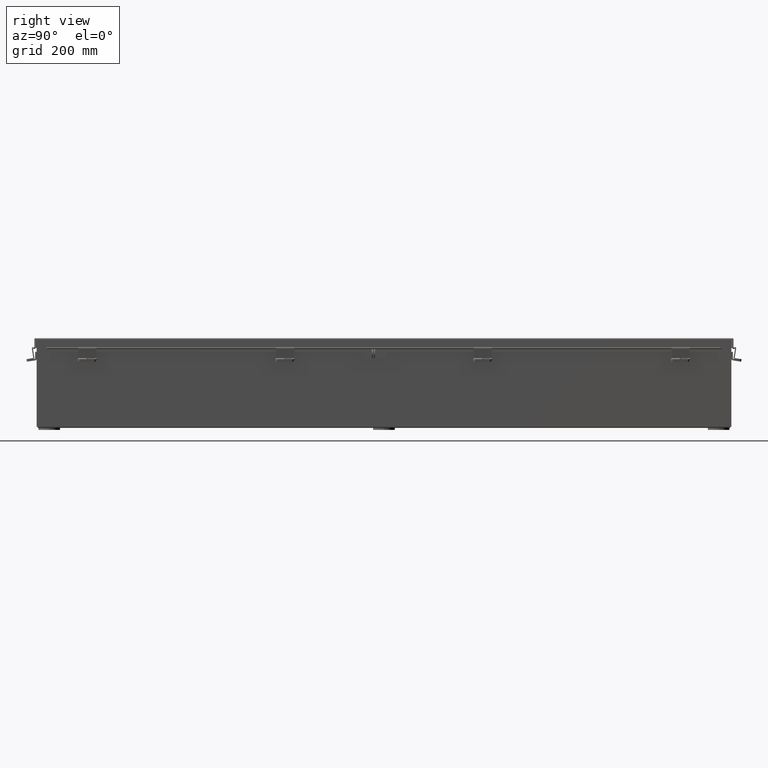
[diagram: clean part render]
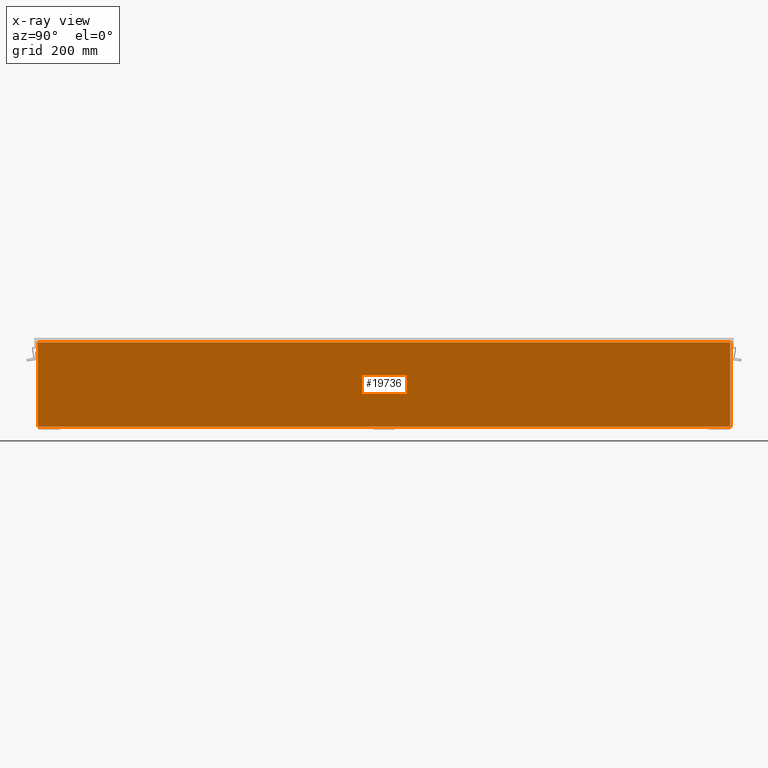
[diagram: x-ray — body ghosted, one internal face saturated and labeled with its STEP entity id]
A machine part, right view, then the same camera in x-ray: the body is ghosted and one INTERNAL B-rep face — a face not visible from any outside direction — is saturated and labeled: STEP entity #19736.
In plain terms, the highlighted planar face has unit normal (-1, 0, 0).
Its self-contained STEP definition (entity closure, byte-faithful):
#339 = PLANE ( 'NONE',  #26801 ) ;
#648 = VECTOR ( 'NONE', #5470, 39.37007874015748100 ) ;
#1416 = DIRECTION ( 'NONE',  ( 3.455316574900958600E-015, -0.0000000000000000000, 1.000000000000000000 ) ) ;
#2490 = CARTESIAN_POINT ( 'NONE',  ( 2.925299999999997300, -23.92529999999998600, 0.0000000000000000000 ) ) ;
#2519 = VECTOR ( 'NONE', #34751, 39.37007874015748100 ) ;
#3842 = VERTEX_POINT ( 'NONE', #32704 ) ;
#5470 = DIRECTION ( 'NONE',  ( -3.455316574900958600E-015, -0.0000000000000000000, -1.000000000000000000 ) ) ;
#8894 = DIRECTION ( 'NONE',  ( 3.455316574900958600E-015, 0.0000000000000000000, 1.000000000000000000 ) ) ;
#8921 = EDGE_CURVE ( 'NONE', #16122, #23466, #26076, .T. ) ;
#8979 = EDGE_CURVE ( 'NONE', #3842, #12277, #25175, .T. ) ;
#10916 = VECTOR ( 'NONE', #28856, 39.37007874015748100 ) ;
#12277 = VERTEX_POINT ( 'NONE', #18102 ) ;
#13101 = ORIENTED_EDGE ( 'NONE', *, *, #35552, .F. ) ;
#13822 = CARTESIAN_POINT ( 'NONE',  ( 2.925300000000017800, 23.92530000000000000, 5.837599999999999200 ) ) ;
#14496 = CARTESIAN_POINT ( 'NONE',  ( 2.925299999999997300, 0.0000000000000000000, -1.036394832596379800E-014 ) ) ;
#14540 = CARTESIAN_POINT ( 'NONE',  ( 2.925300000000017800, 23.92529999999999600, 5.837599999999999200 ) ) ;
#15718 = LINE ( 'NONE', #24181, #22437 ) ;
#16122 = VERTEX_POINT ( 'NONE', #13822 ) ;
#17048 = CARTESIAN_POINT ( 'NONE',  ( 2.925300000000017800, -23.92529999999998600, 5.837599999999999200 ) ) ;
#18102 = CARTESIAN_POINT ( 'NONE',  ( 2.925299999999997300, 23.92529999999998900, 0.01300000000000011600 ) ) ;
#19736 = ADVANCED_FACE ( 'NONE', ( #33125 ), #339, .T. ) ;
#22437 = VECTOR ( 'NONE', #1416, 39.37007874015748100 ) ;
#23342 = LINE ( 'NONE', #2490, #648 ) ;
#23466 = VERTEX_POINT ( 'NONE', #17048 ) ;
#24181 = CARTESIAN_POINT ( 'NONE',  ( 2.925300000000017800, 23.92530000000000000, 5.850600000000000000 ) ) ;
#24314 = ORIENTED_EDGE ( 'NONE', *, *, #8979, .F. ) ;
#25175 = LINE ( 'NONE', #31872, #2519 ) ;
#25272 = ORIENTED_EDGE ( 'NONE', *, *, #26617, .F. ) ;
#25951 = DIRECTION ( 'NONE',  ( -1.000000000000000000, 0.0000000000000000000, 3.455316574900958600E-015 ) ) ;
#26076 = LINE ( 'NONE', #14540, #10916 ) ;
#26617 = EDGE_CURVE ( 'NONE', #23466, #3842, #23342, .T. ) ;
#26801 = AXIS2_PLACEMENT_3D ( 'NONE', #14496, #25951, #8894 ) ;
#27376 = EDGE_LOOP ( 'NONE', ( #25272, #30742, #13101, #24314 ) ) ;
#28856 = DIRECTION ( 'NONE',  ( -0.0000000000000000000, -1.000000000000000000, -0.0000000000000000000 ) ) ;
#30742 = ORIENTED_EDGE ( 'NONE', *, *, #8921, .F. ) ;
#31872 = CARTESIAN_POINT ( 'NONE',  ( 2.925299999999997300, -23.92529999999998600, 0.01300000000000011600 ) ) ;
#32704 = CARTESIAN_POINT ( 'NONE',  ( 2.925299999999997300, -23.92529999999998200, 0.01300000000000011600 ) ) ;
#33125 = FACE_OUTER_BOUND ( 'NONE', #27376, .T. ) ;
#34751 = DIRECTION ( 'NONE',  ( 0.0000000000000000000, 1.000000000000000000, 0.0000000000000000000 ) ) ;
#35552 = EDGE_CURVE ( 'NONE', #12277, #16122, #15718, .T. ) ;